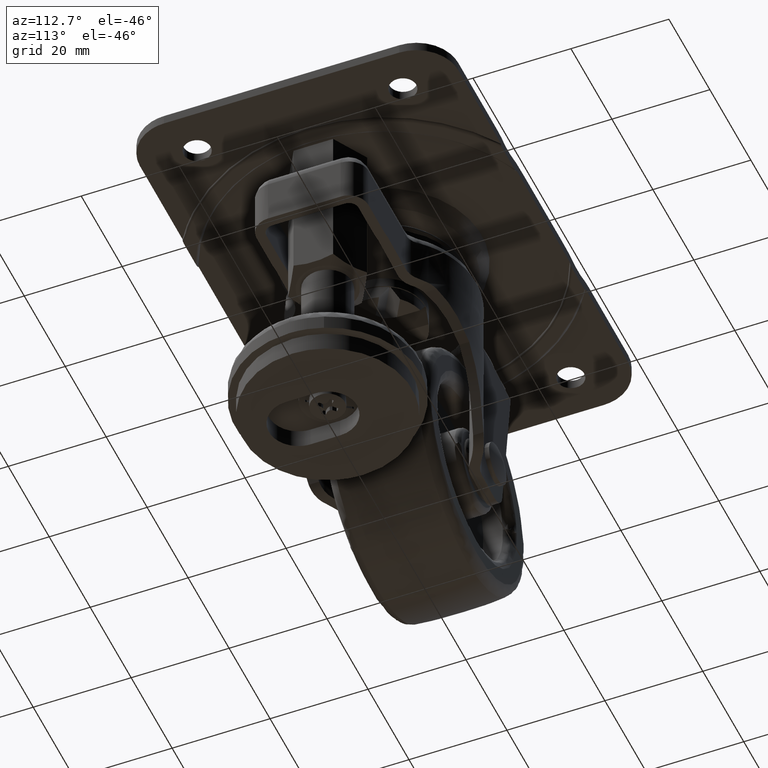
[diagram: clean part render]
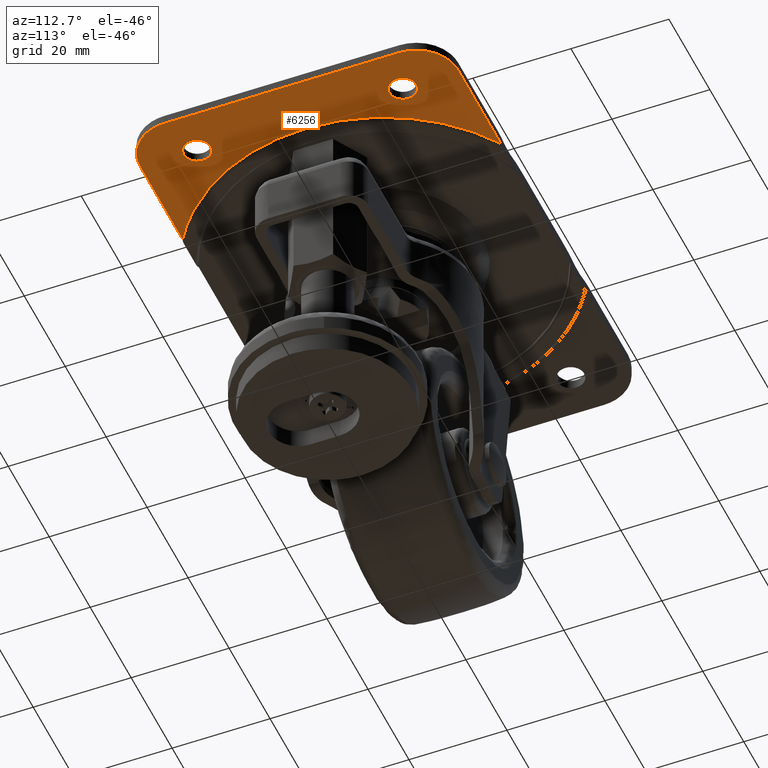
[diagram: same view with one face highlighted and labeled with its STEP entity id]
A machine part, auxiliary view. The second image highlights one B-rep face of the part: STEP entity #6256.
In plain terms, the highlighted face is a freeform B-spline surface patch.
Its self-contained STEP definition (entity closure, byte-faithful):
#3629=CARTESIAN_POINT('',(41.167883483929771,23.744870695647361,-2.0));
#3630=VERTEX_POINT('',#3629);
#3636=CARTESIAN_POINT('',(43.750000000000007,21.0,-2.0));
#3637=VERTEX_POINT('',#3636);
#3638=CARTESIAN_POINT('',(43.750000000000007,21.0,-2.0));
#3639=CARTESIAN_POINT('',(43.750000000000014,23.586941683596155,-2.000000000000000));
#3640=CARTESIAN_POINT('',(41.167883483929778,23.744870695647357,-2.000000000000000));
#3648=(BOUNDED_CURVE()B_SPLINE_CURVE(2,(#3638,#3639,#3640),.UNSPECIFIED.,.F.,.U.)B_SPLINE_CURVE_WITH_KNOTS((3,3),(0.500000000000000,0.739332962215704),.UNSPECIFIED.)CURVE()GEOMETRIC_REPRESENTATION_ITEM()RATIONAL_B_SPLINE_CURVE((1.0,0.719603993313937,0.976072041616912))REPRESENTATION_ITEM(''));
#3649=EDGE_CURVE('',#3637,#3630,#3648,.T.);
#3651=CARTESIAN_POINT('',(40.675405854426302,18.269223802531730,-2.0));
#3652=VERTEX_POINT('',#3651);
#3653=CARTESIAN_POINT('',(40.675405854426302,18.269223802531730,-2.000000000000000));
#3654=CARTESIAN_POINT('',(40.837133670686811,18.250000000000004,-2.000000000000000));
#3655=CARTESIAN_POINT('',(41.0,18.250000000000000,-2.0));
#3656=CARTESIAN_POINT('',(43.750000000000007,18.250000000000011,-2.000000000000000));
#3657=CARTESIAN_POINT('',(43.750000000000007,21.0,-2.0));
#3665=(BOUNDED_CURVE()B_SPLINE_CURVE(2,(#3653,#3654,#3655,#3656,#3657),.UNSPECIFIED.,.F.,.U.)B_SPLINE_CURVE_WITH_KNOTS((3,2,3),(0.229562473482520,0.250000000000000,0.500000000000000),.UNSPECIFIED.)CURVE()GEOMETRIC_REPRESENTATION_ITEM()RATIONAL_B_SPLINE_CURVE((0.956026754122961,0.976055948294840,1.0,0.707106781186548,1.0))REPRESENTATION_ITEM(''));
#3666=EDGE_CURVE('',#3652,#3637,#3665,.T.);
#3710=CARTESIAN_POINT('',(38.250000000000000,21.0,-2.0));
#3711=VERTEX_POINT('',#3710);
#3712=CARTESIAN_POINT('',(38.250000000000000,21.0,-2.0));
#3713=CARTESIAN_POINT('',(38.250000000000007,18.557520054115834,-2.000000000000000));
#3714=CARTESIAN_POINT('',(40.675405854426302,18.269223802531730,-2.000000000000000));
#3722=(BOUNDED_CURVE()B_SPLINE_CURVE(2,(#3712,#3713,#3714),.UNSPECIFIED.,.F.,.U.)B_SPLINE_CURVE_WITH_KNOTS((3,3),(0.0,0.229562473482520),.UNSPECIFIED.)CURVE()GEOMETRIC_REPRESENTATION_ITEM()RATIONAL_B_SPLINE_CURVE((1.0,0.731050832891708,0.956026754122961))REPRESENTATION_ITEM(''));
#3723=EDGE_CURVE('',#3711,#3652,#3722,.T.);
#3725=CARTESIAN_POINT('',(41.167883483929771,23.744870695647357,-2.000000000000000));
#3726=CARTESIAN_POINT('',(41.084020099280615,23.750000000000007,-2.000000000000000));
#3727=CARTESIAN_POINT('',(41.0,23.750000000000000,-2.0));
#3728=CARTESIAN_POINT('',(38.250000000000007,23.750000000000011,-2.000000000000000));
#3729=CARTESIAN_POINT('',(38.250000000000000,21.0,-2.0));
#3737=(BOUNDED_CURVE()B_SPLINE_CURVE(2,(#3725,#3726,#3727,#3728,#3729),.UNSPECIFIED.,.F.,.U.)B_SPLINE_CURVE_WITH_KNOTS((3,2,3),(0.739332962215703,0.750000000000000,1.0),.UNSPECIFIED.)CURVE()GEOMETRIC_REPRESENTATION_ITEM()RATIONAL_B_SPLINE_CURVE((0.976072041616911,0.987502787872611,1.0,0.707106781186548,1.0))REPRESENTATION_ITEM(''));
#3738=EDGE_CURVE('',#3630,#3711,#3737,.T.);
#3815=CARTESIAN_POINT('',(41.167883483929771,-18.255129304352639,-2.0));
#3816=VERTEX_POINT('',#3815);
#3822=CARTESIAN_POINT('',(43.750000000000007,-21.0,-2.0));
#3823=VERTEX_POINT('',#3822);
#3824=CARTESIAN_POINT('',(43.750000000000007,-21.0,-2.0));
#3825=CARTESIAN_POINT('',(43.750000000000014,-18.413058316403863,-2.000000000000000));
#3826=CARTESIAN_POINT('',(41.167883483929778,-18.255129304352646,-2.000000000000000));
#3834=(BOUNDED_CURVE()B_SPLINE_CURVE(2,(#3824,#3825,#3826),.UNSPECIFIED.,.F.,.U.)B_SPLINE_CURVE_WITH_KNOTS((3,3),(0.500000000000000,0.739332962215704),.UNSPECIFIED.)CURVE()GEOMETRIC_REPRESENTATION_ITEM()RATIONAL_B_SPLINE_CURVE((1.0,0.719603993313937,0.976072041616912))REPRESENTATION_ITEM(''));
#3835=EDGE_CURVE('',#3823,#3816,#3834,.T.);
#3837=CARTESIAN_POINT('',(40.675405854426302,-23.730776197468270,-2.0));
#3838=VERTEX_POINT('',#3837);
#3839=CARTESIAN_POINT('',(40.675405854426295,-23.730776197468273,-2.000000000000000));
#3840=CARTESIAN_POINT('',(40.837133670686811,-23.750000000000000,-2.000000000000000));
#3841=CARTESIAN_POINT('',(41.0,-23.750000000000000,-2.0));
#3842=CARTESIAN_POINT('',(43.750000000000007,-23.750000000000011,-2.000000000000000));
#3843=CARTESIAN_POINT('',(43.750000000000007,-21.0,-2.0));
#3851=(BOUNDED_CURVE()B_SPLINE_CURVE(2,(#3839,#3840,#3841,#3842,#3843),.UNSPECIFIED.,.F.,.U.)B_SPLINE_CURVE_WITH_KNOTS((3,2,3),(0.229562473482520,0.250000000000000,0.500000000000000),.UNSPECIFIED.)CURVE()GEOMETRIC_REPRESENTATION_ITEM()RATIONAL_B_SPLINE_CURVE((0.956026754122960,0.976055948294840,1.0,0.707106781186548,1.0))REPRESENTATION_ITEM(''));
#3852=EDGE_CURVE('',#3838,#3823,#3851,.T.);
#3896=CARTESIAN_POINT('',(38.250000000000000,-21.0,-2.0));
#3897=VERTEX_POINT('',#3896);
#3898=CARTESIAN_POINT('',(38.250000000000000,-21.0,-2.0));
#3899=CARTESIAN_POINT('',(38.249999999999993,-23.442479945884163,-2.0));
#3900=CARTESIAN_POINT('',(40.675405854426295,-23.730776197468273,-2.000000000000000));
#3908=(BOUNDED_CURVE()B_SPLINE_CURVE(2,(#3898,#3899,#3900),.UNSPECIFIED.,.F.,.U.)B_SPLINE_CURVE_WITH_KNOTS((3,3),(0.0,0.229562473482520),.UNSPECIFIED.)CURVE()GEOMETRIC_REPRESENTATION_ITEM()RATIONAL_B_SPLINE_CURVE((1.0,0.731050832891708,0.956026754122960))REPRESENTATION_ITEM(''));
#3909=EDGE_CURVE('',#3897,#3838,#3908,.T.);
#3911=CARTESIAN_POINT('',(41.167883483929771,-18.255129304352643,-2.000000000000000));
#3912=CARTESIAN_POINT('',(41.084020099280622,-18.250000000000007,-2.000000000000000));
#3913=CARTESIAN_POINT('',(41.0,-18.250000000000000,-2.0));
#3914=CARTESIAN_POINT('',(38.250000000000007,-18.250000000000011,-2.000000000000000));
#3915=CARTESIAN_POINT('',(38.250000000000000,-21.0,-2.0));
#3923=(BOUNDED_CURVE()B_SPLINE_CURVE(2,(#3911,#3912,#3913,#3914,#3915),.UNSPECIFIED.,.F.,.U.)B_SPLINE_CURVE_WITH_KNOTS((3,2,3),(0.739332962215703,0.750000000000000,1.0),.UNSPECIFIED.)CURVE()GEOMETRIC_REPRESENTATION_ITEM()RATIONAL_B_SPLINE_CURVE((0.976072041616910,0.987502787872610,1.0,0.707106781186548,1.0))REPRESENTATION_ITEM(''));
#3924=EDGE_CURVE('',#3816,#3897,#3923,.T.);
#5054=CARTESIAN_POINT('',(20.639213335955851,32.500000000000000,-2.0));
#5055=VERTEX_POINT('',#5054);
#5081=CARTESIAN_POINT('',(20.639213335955851,-32.500000000000000,-2.0));
#5082=VERTEX_POINT('',#5081);
#5083=CARTESIAN_POINT('',(20.639213335955858,32.500000000000000,-2.0));
#5084=CARTESIAN_POINT('',(38.499702948556603,21.157647526181837,-2.000000000000000));
#5085=CARTESIAN_POINT('',(38.499702948556603,0.0,-2.0));
#5086=CARTESIAN_POINT('',(38.499702948556603,-21.157647526181815,-2.000000000000000));
#5087=CARTESIAN_POINT('',(20.639213335955880,-32.499999999999993,-2.0));
#5095=(BOUNDED_CURVE()B_SPLINE_CURVE(2,(#5083,#5084,#5085,#5086,#5087),.UNSPECIFIED.,.F.,.U.)B_SPLINE_CURVE_WITH_KNOTS((3,2,3),(0.0,0.500000000000000,1.0),.UNSPECIFIED.)CURVE()GEOMETRIC_REPRESENTATION_ITEM()RATIONAL_B_SPLINE_CURVE((1.0,0.876381081356965,1.0,0.876381081356965,1.0))REPRESENTATION_ITEM(''));
#5096=EDGE_CURVE('',#5055,#5082,#5095,.T.);
#5578=CARTESIAN_POINT('',(50.0,-24.0,-2.0));
#5579=VERTEX_POINT('',#5578);
#5585=CARTESIAN_POINT('',(50.0,24.0,-2.0));
#5586=VERTEX_POINT('',#5585);
#5587=CARTESIAN_POINT('',(50.0,-24.0,-2.0));
#5588=CARTESIAN_POINT('',(50.0,24.0,-2.0));
#5589=QUASI_UNIFORM_CURVE('',1,(#5587,#5588),.UNSPECIFIED.,.F.,.U.);
#5590=EDGE_CURVE('',#5579,#5586,#5589,.T.);
#5629=CARTESIAN_POINT('',(41.500000000000000,-32.500000000000000,-2.0));
#5630=VERTEX_POINT('',#5629);
#5636=CARTESIAN_POINT('',(41.500000000000000,-32.500000000000000,-2.0));
#5637=CARTESIAN_POINT('',(50.0,-32.500000000000007,-2.000000000000000));
#5638=CARTESIAN_POINT('',(50.0,-24.0,-2.0));
#5646=(BOUNDED_CURVE()B_SPLINE_CURVE(2,(#5636,#5637,#5638),.UNSPECIFIED.,.F.,.U.)CURVE()GEOMETRIC_REPRESENTATION_ITEM()QUASI_UNIFORM_CURVE()RATIONAL_B_SPLINE_CURVE((1.0,0.707106781186548,1.0))REPRESENTATION_ITEM(''));
#5647=EDGE_CURVE('',#5630,#5579,#5646,.T.);
#5825=CARTESIAN_POINT('',(41.500000000000000,32.500000000000000,-2.0));
#5826=VERTEX_POINT('',#5825);
#5827=CARTESIAN_POINT('',(50.0,24.0,-2.0));
#5828=CARTESIAN_POINT('',(50.0,32.500000000000007,-2.000000000000000));
#5829=CARTESIAN_POINT('',(41.500000000000000,32.500000000000000,-2.0));
#5837=(BOUNDED_CURVE()B_SPLINE_CURVE(2,(#5827,#5828,#5829),.UNSPECIFIED.,.F.,.U.)CURVE()GEOMETRIC_REPRESENTATION_ITEM()QUASI_UNIFORM_CURVE()RATIONAL_B_SPLINE_CURVE((1.0,0.707106781186548,1.0))REPRESENTATION_ITEM(''));
#5838=EDGE_CURVE('',#5586,#5826,#5837,.T.);
#6037=CARTESIAN_POINT('',(20.639213335955851,-32.500000000000000,-2.0));
#6038=CARTESIAN_POINT('',(41.500000000000000,-32.500000000000000,-2.0));
#6039=QUASI_UNIFORM_CURVE('',1,(#6037,#6038),.UNSPECIFIED.,.F.,.U.);
#6040=EDGE_CURVE('',#5082,#5630,#6039,.T.);
#6063=CARTESIAN_POINT('',(41.500000000000000,32.500000000000000,-2.0));
#6064=CARTESIAN_POINT('',(20.639213335955851,32.500000000000000,-2.0));
#6065=QUASI_UNIFORM_CURVE('',1,(#6063,#6064),.UNSPECIFIED.,.F.,.U.);
#6066=EDGE_CURVE('',#5826,#5055,#6065,.T.);
#6231=CARTESIAN_POINT('',(19.172642374611812,35.746749874017382,-2.0));
#6232=CARTESIAN_POINT('',(51.466572011367603,35.746749874017382,-2.0));
#6233=CARTESIAN_POINT('',(19.172642374611812,-35.746751617453242,-2.0));
#6234=CARTESIAN_POINT('',(51.466572011367603,-35.746751617453242,-2.0));
#6235=B_SPLINE_SURFACE_WITH_KNOTS('',1,1,((#6231,#6233),(#6232,#6234)),.UNSPECIFIED.,.F.,.F.,.U.,(2,2),(2,2),(0.0,32.293929636755792),(0.0,71.493501491470624),.UNSPECIFIED.);
#6236=ORIENTED_EDGE('',*,*,#5096,.F.);
#6237=ORIENTED_EDGE('',*,*,#6066,.F.);
#6238=ORIENTED_EDGE('',*,*,#5838,.F.);
#6239=ORIENTED_EDGE('',*,*,#5590,.F.);
#6240=ORIENTED_EDGE('',*,*,#5647,.F.);
#6241=ORIENTED_EDGE('',*,*,#6040,.F.);
#6242=EDGE_LOOP('',(#6236,#6237,#6238,#6239,#6240,#6241));
#6243=FACE_OUTER_BOUND('',#6242,.T.);
#6244=ORIENTED_EDGE('',*,*,#3835,.T.);
#6245=ORIENTED_EDGE('',*,*,#3924,.T.);
#6246=ORIENTED_EDGE('',*,*,#3909,.T.);
#6247=ORIENTED_EDGE('',*,*,#3852,.T.);
#6248=EDGE_LOOP('',(#6244,#6245,#6246,#6247));
#6249=FACE_BOUND('',#6248,.T.);
#6250=ORIENTED_EDGE('',*,*,#3649,.T.);
#6251=ORIENTED_EDGE('',*,*,#3738,.T.);
#6252=ORIENTED_EDGE('',*,*,#3723,.T.);
#6253=ORIENTED_EDGE('',*,*,#3666,.T.);
#6254=EDGE_LOOP('',(#6250,#6251,#6252,#6253));
#6255=FACE_BOUND('',#6254,.T.);
#6256=ADVANCED_FACE('',(#6243,#6249,#6255),#6235,.T.);